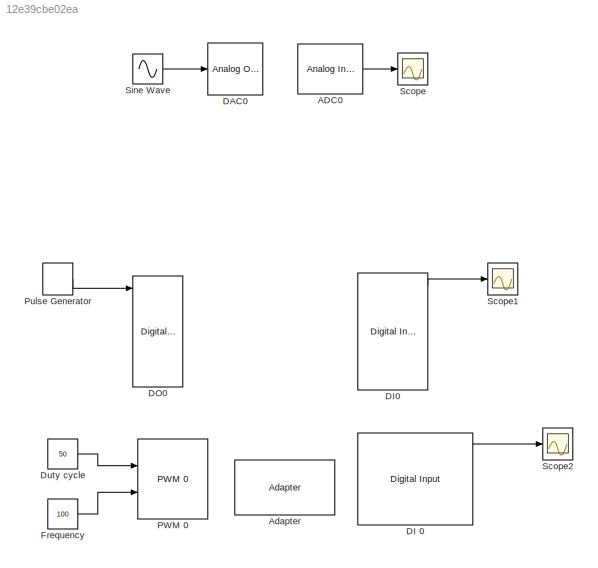
MODEL slx_12e39cbe02ea
KIND model
CONFIG AbsTol = auto
CONFIG EnableMultiTasking = on
CONFIG FixedStep = Ts
CONFIG MaxStep = auto
CONFIG MinStep = auto
CONFIG RelTol = 1e-3
CONFIG SampleTimeConstraint = Unconstrained
CONFIG Solver = ode3
CONFIG SolverName = ode3
CONFIG StartTime = 0.0
CONFIG StopTime = inf
BLOCK [Reference] ADC0  REF=Rayannik/Analog Input
  Ports = [0, 1]
  Priority = 2
  SourceBlock = Rayannik/Analog Input
  SourceType = Analog Input
BLOCK [Reference] Adapter  REF=Rayannik/Adapter
  Ports = []
  SourceBlock = Rayannik/Adapter
BLOCK [Reference] DAC0  REF=Rayannik/Analog Output CH0
  Ports = [1]
  Priority = 2
  SourceBlock = Rayannik/Analog Output CH0
  SourceType = Analog Output
BLOCK [Reference] DI 0  REF=Rayannik/Digital Input
  Ports = [0, 8]
  Priority = 2
  SourceBlock = Rayannik/Digital Input
  SourceType = Digital Output
BLOCK [Reference] DI0  REF=Rayannik/Digital Input
  Ports = [0, 8]
  Priority = 2
  SourceBlock = Rayannik/Digital Input
  SourceType = Digital Output
BLOCK [Reference] DO0  REF=Rayannik/Digital Output
  Ports = [8]
  Priority = 2
  SourceBlock = Rayannik/Digital Output
  SourceType = Digital Output
BLOCK [Constant] Duty cycle
  Value = 50
BLOCK [Constant] Frequency
  Value = 100
BLOCK [Reference] PWM 0  REF=Rayannik/PWM 0
  Ports = [2]
  Priority = 2
  SourceBlock = Rayannik/PWM 0
  SourceType = PWM Output
BLOCK [DiscretePulseGenerator] Pulse Generator
  Amplitude = 5
  Ports = [0, 1]
  PulseType = Time based
  PulseWidth = 50
BLOCK [Scope] Scope
  NumInputPorts = 1
  Ports = [1]
  ScopeSpecificationString = Simulink.scopes.TimeScopeBlockCfg('CurrentConfiguration', extmgr.ConfigurationSet(extmgr.Configuration('Core','General UI',true),extmgr.Configuration('Core','Source UI',true),extmgr.Configuration('Sources','WiredSimulink',true,'DataLoggingSaveFormat','StructureWithTime','DataLoggingLimitDataPoints',true,'DataLoggingDecimateData',true),extmgr.Configuration('Visuals','Time Domain',true,'SerializedDi...<+1617ch>
BLOCK [Scope] Scope1
  NumInputPorts = 1
  Ports = [1]
  ScopeSpecificationString = Simulink.scopes.TimeScopeBlockCfg('CurrentConfiguration', extmgr.ConfigurationSet(extmgr.Configuration('Core','General UI',true),extmgr.Configuration('Core','Source UI',true),extmgr.Configuration('Sources','WiredSimulink',true,'DataLoggingSaveFormat','StructureWithTime','DataLoggingLimitDataPoints',true,'DataLoggingDecimateData',true,'DataLoggingVariableName','ScopeData1'),extmgr.Configuration('Vi...<+1635ch>
BLOCK [Scope] Scope2
  NumInputPorts = 1
  Ports = [1]
  ScopeSpecificationString = Simulink.scopes.TimeScopeBlockCfg('CurrentConfiguration', extmgr.ConfigurationSet(extmgr.Configuration('Core','General UI',true),extmgr.Configuration('Core','Source UI',true),extmgr.Configuration('Sources','WiredSimulink',true,'DataLoggingSaveFormat','StructureWithTime','DataLoggingLimitDataPoints',true,'DataLoggingDecimateData',true,'DataLoggingVariableName','ScopeData2'),extmgr.Configuration('Vi...<+1735ch>
BLOCK [Sin] Sine Wave
  Amplitude = 2
  Ports = [0, 1]
  SampleTime = 0
LINE ADC0:1 -> Scope:1
LINE DI 0:1 -> Scope2:1
LINE DI0:1 -> Scope1:1
LINE Duty cycle:1 -> PWM 0:1
LINE Frequency:1 -> PWM 0:2
LINE Pulse Generator:1 -> DO0:1
LINE Sine Wave:1 -> DAC0:1
